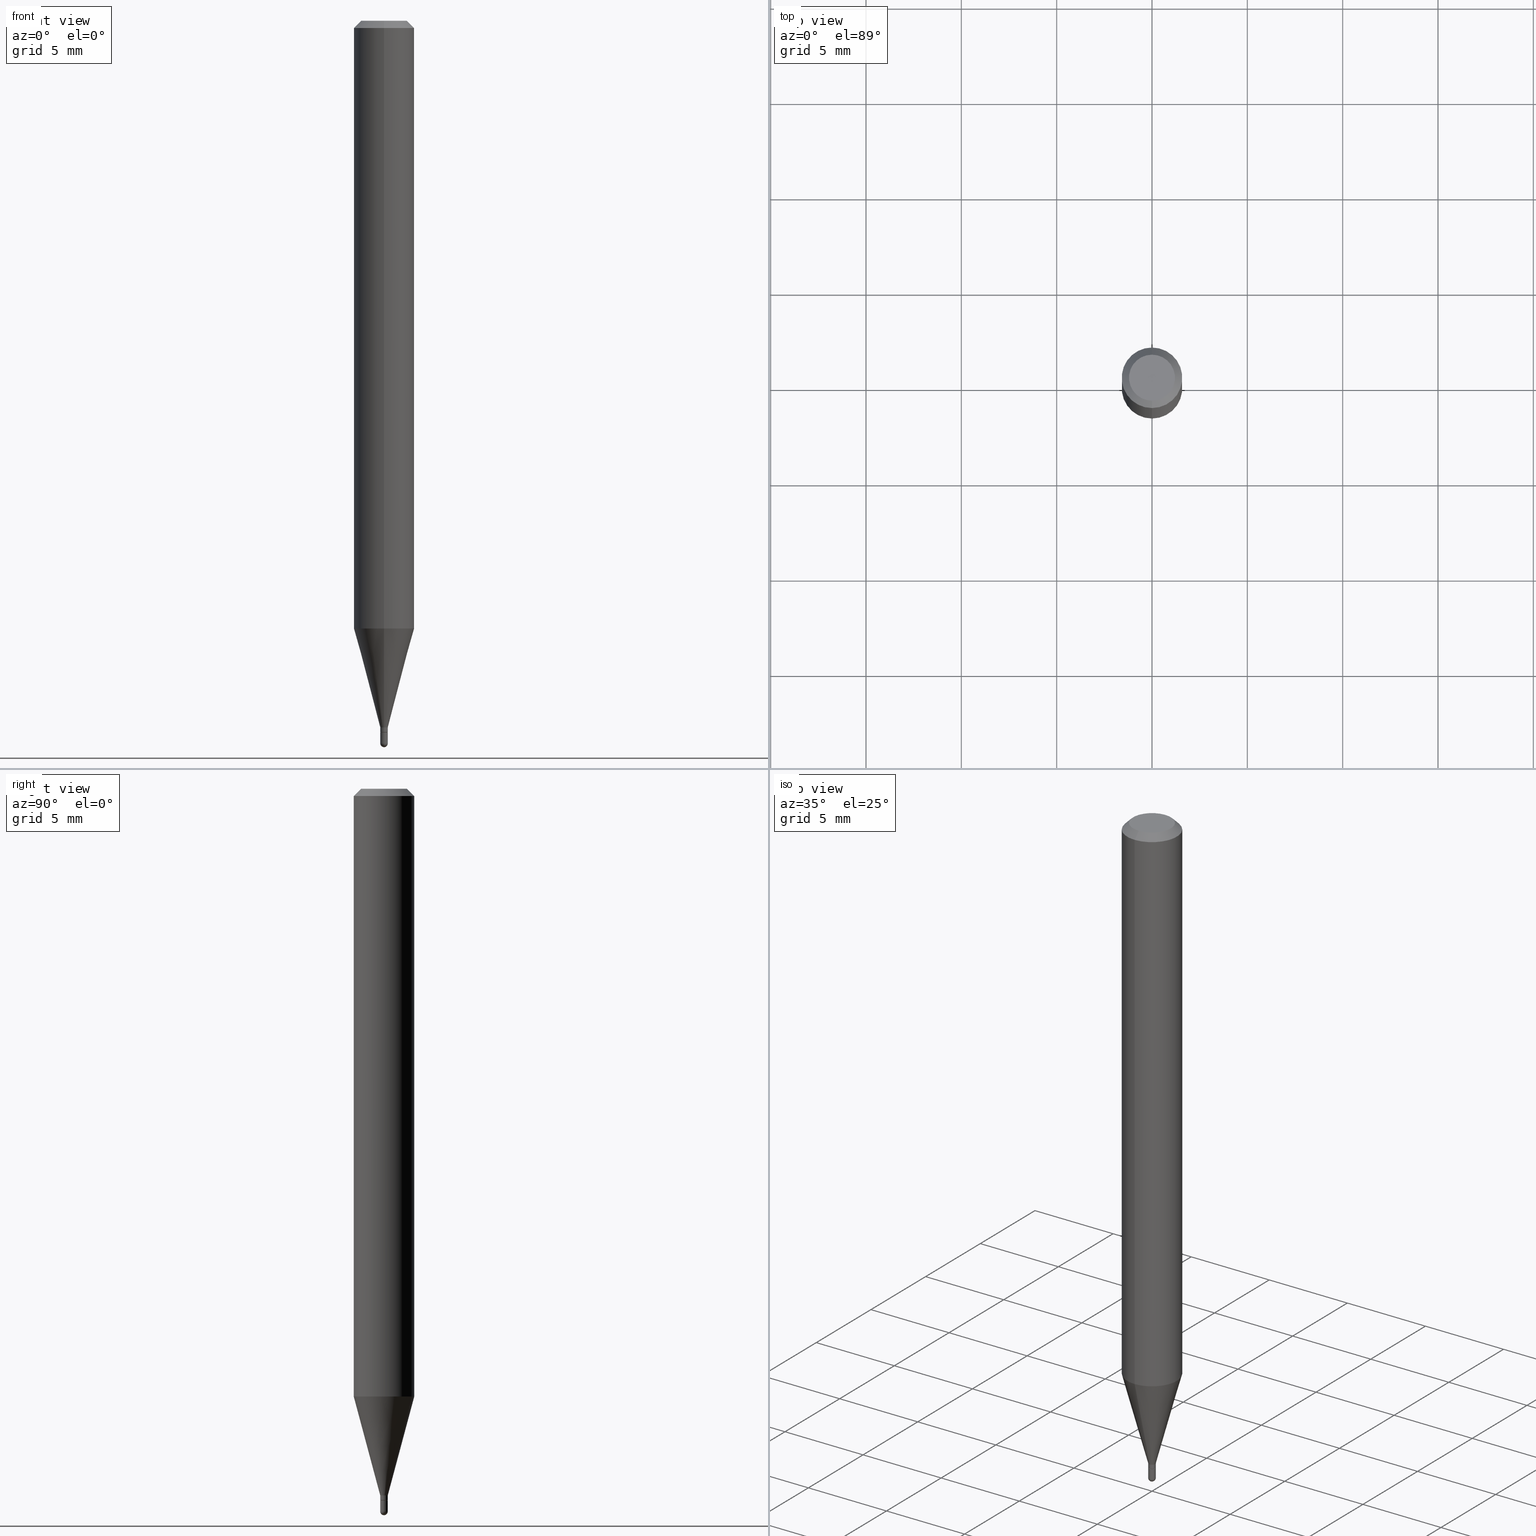
[diagram: canonical four-view strip — front | top / right | iso, engineering-drawing reading convention]
A machine part, canonical four-view strip (front | top / right | iso — engineering-drawing reading convention). The complete STEP part file that produces these views, byte-faithful:
ISO-10303-21;
HEADER;
FILE_DESCRIPTION (( 'STEP AP203' ),
    '1' );
FILE_NAME ('39102.STEP',
    '2024-03-08T12:44:25',
    ( '' ),
    ( '' ),
    'SwSTEP 2.0',
    'SolidWorks 2023',
    '' );
FILE_SCHEMA (( 'CONFIG_CONTROL_DESIGN' ));
ENDSEC;

DATA;
#1 = DIRECTION ( 'NONE',  ( -2.438888398687161749E-29, 3.500904856913780958E-15, 1.000000000000000000 ) ) ;
#2 = ORIENTED_EDGE ( 'NONE', *, *, #356, .T. ) ;
#3 = CARTESIAN_POINT ( 'NONE',  ( 0.007799999999999709076, -5.446710888595084972E-17, 3.803417885120687718E-31 ) ) ;
#4 = EDGE_CURVE ( 'NONE', #43, #236, #222, .T. ) ;
#5 = ORIENTED_EDGE ( 'NONE', *, *, #381, .T. ) ;
#6 = DIRECTION ( 'NONE',  ( -6.982962677686265133E-15, -1.000000000000000000, 3.500904856913780564E-15 ) ) ;
#7 = ORIENTED_EDGE ( 'NONE', *, *, #462, .F. ) ;
#8 = DIRECTION ( 'NONE',  ( -2.445468806185136597E-29, 3.491481338843145583E-15, 1.000000000000000000 ) ) ;
#9 = ORIENTED_EDGE ( 'NONE', *, *, #136, .T. ) ;
#10 = CARTESIAN_POINT ( 'NONE',  ( 5.186961971052139529E-17, 0.007299999999994612881, -1.469000000000000306 ) ) ;
#11 = DIRECTION ( 'NONE',  ( 1.000000000000000000, -6.982962677686265922E-15, 4.883557194083112901E-29 ) ) ;
#12 = CARTESIAN_POINT ( 'NONE',  ( -5.446710888595049843E-17, -0.007799999999999660504, 2.730705788392630131E-17 ) ) ;
#13 = PRODUCT_RELATED_PRODUCT_CATEGORY ( 'detail', '', ( #291 ) ) ;
#14 = DIRECTION ( 'NONE',  ( -2.438888398687161749E-29, 3.500904856913780958E-15, 1.000000000000000000 ) ) ;
#15 = CONICAL_SURFACE ( 'NONE', #461, 0.007299999999999755469, 0.7853981633980042787 ) ;
#16 = DIRECTION ( 'NONE',  ( -4.937700262167293278E-15, -0.7071067811869382602, 0.7071067811861568853 ) ) ;
#17 = DIRECTION ( 'NONE',  ( -2.445468806185136597E-29, 3.491481338843145583E-15, 1.000000000000000000 ) ) ;
#18 = FACE_OUTER_BOUND ( 'NONE', #426, .T. ) ;
#19 = COORDINATED_UNIVERSAL_TIME_OFFSET ( 5, 0, .BEHIND. ) ;
#20 = LINE ( 'NONE', #184, #161 ) ;
#21 =( CONVERSION_BASED_UNIT ( 'INCH', #95 ) LENGTH_UNIT ( ) NAMED_UNIT ( #336 ) );
#22 = CIRCLE ( 'NONE', #194, 0.007799999999999709076 ) ;
#23 = CARTESIAN_POINT ( 'NONE',  ( 5.446710888598677370E-17, 0.007799999999994580366, -1.469000000000000750 ) ) ;
#24 = MANIFOLD_SOLID_BREP ( 'Body-Move/Copy2[1]', #188 ) ;
#25 = DIRECTION ( 'NONE',  ( -1.000000000000000000, 6.982962677686265922E-15, -4.883557194083112340E-29 ) ) ;
#26 = FACE_OUTER_BOUND ( 'NONE', #207, .T. ) ;
#27 = DATE_AND_TIME ( #183, #343 ) ;
#28 = MANIFOLD_SOLID_BREP ( 'Body-Move/Copy2[2]', #335 ) ;
#29 = DATE_AND_TIME ( #69, #229 ) ;
#30 = AXIS2_PLACEMENT_3D ( 'NONE', #482, #247, #399 ) ;
#31 = APPROVAL_PERSON_ORGANIZATION ( #147, #264, #376 ) ;
#32 = EDGE_LOOP ( 'NONE', ( #77, #128 ) ) ;
#33 = ADVANCED_FACE ( 'NONE', ( #497 ), #331, .T. ) ;
#34 = EDGE_CURVE ( 'NONE', #84, #505, #419, .T. ) ;
#35 = LINE ( 'NONE', #104, #484 ) ;
#36 = FACE_OUTER_BOUND ( 'NONE', #82, .T. ) ;
#37 = AXIS2_PLACEMENT_3D ( 'NONE', #99, #488, #139 ) ;
#38 = AXIS2_PLACEMENT_3D ( 'NONE', #76, #338, #355 ) ;
#39 = ORIENTED_EDGE ( 'NONE', *, *, #491, .F. ) ;
#40 = DIRECTION ( 'NONE',  ( 7.105427357601000281E-15, 1.000000000000000000, 0.000000000000000000 ) ) ;
#41 = ORIENTED_EDGE ( 'NONE', *, *, #356, .F. ) ;
#42 = CARTESIAN_POINT ( 'NONE',  ( 3.649128552589461564E-29, -5.209988453821742721E-15, -1.492200000000000193 ) ) ;
#43 = VERTEX_POINT ( 'NONE', #366 ) ;
#44 = DIRECTION ( 'NONE',  ( -2.438888398687161749E-29, 3.500904856913780958E-15, 1.000000000000000000 ) ) ;
#45 = ORIENTED_EDGE ( 'NONE', *, *, #462, .T. ) ;
#46 = CARTESIAN_POINT ( 'NONE',  ( 3.316907271900979054E-16, 0.04750000000000004219, -3.451125341845701985E-16 ) ) ;
#47 = ORIENTED_EDGE ( 'NONE', *, *, #153, .T. ) ;
#48 = CC_DESIGN_PERSON_AND_ORGANIZATION_ASSIGNMENT ( #223, #502, ( #291 ) ) ;
#49 = CARTESIAN_POINT ( 'NONE',  ( 3.658332598030829977E-31, -5.251357285370796693E-17, -0.01500000000000035853 ) ) ;
#50 = DIRECTION ( 'NONE',  ( 1.000000000000000000, -6.982962677686266711E-15, 4.876176775795935232E-29 ) ) ;
#51 = CARTESIAN_POINT ( 'NONE',  ( 8.722418688872659723E-45, -1.252060486586731701E-30, -3.576391069623309378E-16 ) ) ;
#52 = CARTESIAN_POINT ( 'NONE',  ( 0.000000000000000000, 0.000000000000000000, 0.000000000000000000 ) ) ;
#53 = AXIS2_PLACEMENT_3D ( 'NONE', #42, #290, #129 ) ;
#54 = CARTESIAN_POINT ( 'NONE',  ( 0.007799999999999709076, -5.223954379177113172E-15, -1.492200000000000193 ) ) ;
#55 = DIRECTION ( 'NONE',  ( 1.000000000000000000, 0.000000000000000000, 0.000000000000000000 ) ) ;
#56 = LINE ( 'NONE', #254, #80 ) ;
#57 = CARTESIAN_POINT ( 'NONE',  ( 3.434669950589054174E-29, -5.517105378111915335E-15, -1.492200000000000193 ) ) ;
#58 = ORIENTED_EDGE ( 'NONE', *, *, #72, .F. ) ;
#59 = CARTESIAN_POINT ( 'NONE',  ( 3.060455742325940316E-29, -4.393134338761063639E-15, -1.254856820825981156 ) ) ;
#60 = VECTOR ( 'NONE', #415, 39.37007874015748143 ) ;
#61 = VECTOR ( 'NONE', #199, 39.37007874015748143 ) ;
#62 = CC_DESIGN_APPROVAL ( #141, ( #169 ) ) ;
#63 = AXIS2_PLACEMENT_3D ( 'NONE', #146, #262, #50 ) ;
#64 = DIRECTION ( 'NONE',  ( 2.438888398687161749E-29, -3.500904856913780958E-15, -1.000000000000000000 ) ) ;
#65 = EDGE_LOOP ( 'NONE', ( #213, #467, #111, #7 ) ) ;
#66 = PERSON_AND_ORGANIZATION_ROLE ( 'creator' ) ;
#67 = PLANE ( 'NONE',  #387 ) ;
#68 = ORIENTED_EDGE ( 'NONE', *, *, #154, .T. ) ;
#69 = CALENDAR_DATE ( 2024, 8, 3 ) ;
#70 = ORIENTED_EDGE ( 'NONE', *, *, #506, .T. ) ;
#71 = VECTOR ( 'NONE', #16, 39.37007874015748143 ) ;
#72 = EDGE_CURVE ( 'NONE', #509, #439, #211, .T. ) ;
#73 = AXIS2_PLACEMENT_3D ( 'NONE', #245, #191, #187 ) ;
#74 = EDGE_LOOP ( 'NONE', ( #405, #9, #248, #396 ) ) ;
#75 = PERSON_AND_ORGANIZATION ( #472, #477 ) ;
#76 = CARTESIAN_POINT ( 'NONE',  ( 3.558338173684570517E-29, -5.107820186237207836E-15, -1.459000000000000519 ) ) ;
#77 = ORIENTED_EDGE ( 'NONE', *, *, #369, .T. ) ;
#78 = DATE_TIME_ROLE ( 'classification_date' ) ;
#79 = CARTESIAN_POINT ( 'NONE',  ( 0.000000000000000000, 0.000000000000000000, 0.000000000000000000 ) ) ;
#80 = VECTOR ( 'NONE', #483, 39.37007874015748143 ) ;
#81 = AXIS2_PLACEMENT_3D ( 'NONE', #51, #442, #255 ) ;
#82 = EDGE_LOOP ( 'NONE', ( #167, #441 ) ) ;
#83 = DIRECTION ( 'NONE',  ( 5.024295867790855746E-15, 0.7071067811869431452, 0.7071067811861520003 ) ) ;
#84 = VERTEX_POINT ( 'NONE', #295 ) ;
#85 = CYLINDRICAL_SURFACE ( 'NONE', #305, 0.007799999999999660504 ) ;
#86 = VERTEX_POINT ( 'NONE', #490 ) ;
#87 = DIRECTION ( 'NONE',  ( -2.438888398687161749E-29, 3.500904856913780958E-15, 1.000000000000000000 ) ) ;
#88 = ORIENTED_EDGE ( 'NONE', *, *, #136, .F. ) ;
#89 = CIRCLE ( 'NONE', #380, 0.007799999999999709076 ) ;
#90 = DIRECTION ( 'NONE',  ( -6.982962677686265922E-15, -1.000000000000000000, 0.000000000000000000 ) ) ;
#91 = CARTESIAN_POINT ( 'NONE',  ( 3.649128552589461564E-29, -5.209988453821742721E-15, -1.492200000000000193 ) ) ;
#92 = EDGE_CURVE ( 'NONE', #509, #178, #137, .T. ) ;
#93 = CYLINDRICAL_SURFACE ( 'NONE', #228, 0.06250000000000001388 ) ;
#94 = CARTESIAN_POINT ( 'NONE',  ( 3.060455742325940316E-29, -4.393134338761063639E-15, -1.254856820825981156 ) ) ;
#95 = LENGTH_MEASURE_WITH_UNIT ( LENGTH_MEASURE( 0.02539999999999999897 ), #374 );
#96 = CARTESIAN_POINT ( 'NONE',  ( -5.446710888591297207E-17, -0.007800000000004489974, -1.459000000000000519 ) ) ;
#97 = AXIS2_PLACEMENT_3D ( 'NONE', #168, #365, #90 ) ;
#98 = CC_DESIGN_APPROVAL ( #264, ( #347 ) ) ;
#99 = CARTESIAN_POINT ( 'NONE',  ( 3.434669950589054174E-29, -5.517105378111915335E-15, -1.492200000000000193 ) ) ;
#100 = COORDINATED_UNIVERSAL_TIME_OFFSET ( 5, 0, .BEHIND. ) ;
#101 = EDGE_CURVE ( 'NONE', #162, #507, #496, .T. ) ;
#102 = DIRECTION ( 'NONE',  ( -2.438888398687161749E-29, 3.500904856913780958E-15, 1.000000000000000000 ) ) ;
#103 = APPLICATION_PROTOCOL_DEFINITION ( 'international standard', 'config_control_design', 1994, #198 ) ;
#104 = CARTESIAN_POINT ( 'NONE',  ( -4.364351673553917187E-16, -0.06250000000000001388, 2.188065535571113838E-16 ) ) ;
#105 = CC_DESIGN_PERSON_AND_ORGANIZATION_ASSIGNMENT ( #196, #110, ( #169 ) ) ;
#106 = EDGE_LOOP ( 'NONE', ( #512, #233, #41, #398 ) ) ;
#107 = PERSON_AND_ORGANIZATION ( #472, #477 ) ;
#108 = CIRCLE ( 'NONE', #219, 0.007800000000000068164 ) ;
#109 = DIRECTION ( 'NONE',  ( -2.438888398687161749E-29, 3.500904856913780958E-15, 1.000000000000000000 ) ) ;
#110 = PERSON_AND_ORGANIZATION_ROLE ( 'classification_officer' ) ;
#111 = ORIENTED_EDGE ( 'NONE', *, *, #101, .F. ) ;
#112 = APPROVAL_ROLE ( '' ) ;
#113 = AXIS2_PLACEMENT_3D ( 'NONE', #226, #148, #301 ) ;
#114 = ORIENTED_EDGE ( 'NONE', *, *, #101, .T. ) ;
#115 = DIRECTION ( 'NONE',  ( -1.000000000000000000, 6.982962677686265922E-15, -4.876176775795935793E-29 ) ) ;
#116 = ADVANCED_FACE ( 'NONE', ( #257 ), #453, .T. ) ;
#117 = ORIENTED_EDGE ( 'NONE', *, *, #406, .F. ) ;
#118 = FACE_OUTER_BOUND ( 'NONE', #388, .T. ) ;
#119 = VERTEX_POINT ( 'NONE', #54 ) ;
#120 = ADVANCED_FACE ( 'NONE', ( #299 ), #176, .T. ) ;
#121 = CC_DESIGN_PERSON_AND_ORGANIZATION_ASSIGNMENT ( #333, #492, ( #347 ) ) ;
#122 = ADVANCED_FACE ( 'NONE', ( #18 ), #182, .T. ) ;
#123 = DIRECTION ( 'NONE',  ( 2.438888398687161749E-29, -3.500904856913780958E-15, -1.000000000000000000 ) ) ;
#124 = AXIS2_PLACEMENT_3D ( 'NONE', #378, #123, #313 ) ;
#125 = AXIS2_PLACEMENT_3D ( 'NONE', #231, #260, #55 ) ;
#126 = ORIENTED_EDGE ( 'NONE', *, *, #153, .F. ) ;
#127 = DIRECTION ( 'NONE',  ( -6.982962677686265922E-15, -1.000000000000000000, 3.500904856913781353E-15 ) ) ;
#128 = ORIENTED_EDGE ( 'NONE', *, *, #288, .T. ) ;
#129 = DIRECTION ( 'NONE',  ( 1.000000000000000000, -6.982962677686294321E-15, 0.000000000000000000 ) ) ;
#130 = ORIENTED_EDGE ( 'NONE', *, *, #309, .F. ) ;
#131 = DIRECTION ( 'NONE',  ( -2.438888398687161749E-29, 3.500904856913780958E-15, 1.000000000000000000 ) ) ;
#132 = VERTEX_POINT ( 'NONE', #332 ) ;
#133 = CONICAL_SURFACE ( 'NONE', #124, 0.06250000000000001388, 0.7853981633974473908 ) ;
#134 = AXIS2_PLACEMENT_3D ( 'NONE', #94, #256, #412 ) ;
#135 = CARTESIAN_POINT ( 'NONE',  ( 0.007799999999999709076, -5.183453195646533500E-15, -1.469000000000000750 ) ) ;
#136 = EDGE_CURVE ( 'NONE', #202, #505, #56, .T. ) ;
#137 = LINE ( 'NONE', #96, #465 ) ;
#138 = LINE ( 'NONE', #10, #503 ) ;
#139 = DIRECTION ( 'NONE',  ( -6.982962677686265922E-15, -1.000000000000000000, 0.000000000000000000 ) ) ;
#140 = EDGE_CURVE ( 'NONE', #132, #276, #89, .T. ) ;
#141 = APPROVAL ( #345, 'UNSPECIFIED' ) ;
#142 = DIRECTION ( 'NONE',  ( -6.982962677686265922E-15, -1.000000000000000000, 0.000000000000000000 ) ) ;
#143 = CARTESIAN_POINT ( 'NONE',  ( 3.581507613472099215E-29, -5.141078782377889985E-15, -1.468500000000000805 ) ) ;
#144 = AXIS2_PLACEMENT_3D ( 'NONE', #283, #445, #249 ) ;
#145 = DATE_TIME_ROLE ( 'creation_date' ) ;
#146 = CARTESIAN_POINT ( 'NONE',  ( 0.000000000000000000, 0.000000000000000000, 0.000000000000000000 ) ) ;
#147 = PERSON_AND_ORGANIZATION ( #472, #477 ) ;
#148 = DIRECTION ( 'NONE',  ( -2.438888398687161469E-29, 3.500904856913780958E-15, 1.000000000000000000 ) ) ;
#149 = CARTESIAN_POINT ( 'NONE',  ( 4.440892098500935790E-16, 0.06249999999999996531, -0.01500000000000057884 ) ) ;
#150 = CARTESIAN_POINT ( 'NONE',  ( 3.453411092424518502E-29, -5.544816544806560135E-15, -1.500000000000000444 ) ) ;
#151 = DIRECTION ( 'NONE',  ( -6.982962677686265922E-15, -1.000000000000000000, 4.370956789862819572E-15 ) ) ;
#152 = CIRCLE ( 'NONE', #30, 0.007799999999999709076 ) ;
#153 = EDGE_CURVE ( 'NONE', #507, #439, #20, .T. ) ;
#154 = EDGE_CURVE ( 'NONE', #439, #202, #410, .T. ) ;
#155 = EDGE_CURVE ( 'NONE', #178, #202, #446, .T. ) ;
#156 = COORDINATED_UNIVERSAL_TIME_OFFSET ( 5, 0, .BEHIND. ) ;
#157 = ORIENTED_EDGE ( 'NONE', *, *, #500, .F. ) ;
#158 = EDGE_CURVE ( 'NONE', #218, #479, #423, .T. ) ;
#159 = LINE ( 'NONE', #310, #475 ) ;
#160 = AXIS2_PLACEMENT_3D ( 'NONE', #253, #359, #326 ) ;
#161 = VECTOR ( 'NONE', #14, 39.37007874015748143 ) ;
#162 = VERTEX_POINT ( 'NONE', #166 ) ;
#163 = CARTESIAN_POINT ( 'NONE',  ( 3.582727057671441680E-29, -5.142829234806344242E-15, -1.469000000000000306 ) ) ;
#164 = ADVANCED_FACE ( 'NONE', ( #435 ), #422, .T. ) ;
#165 = ORIENTED_EDGE ( 'NONE', *, *, #427, .F. ) ;
#166 = CARTESIAN_POINT ( 'NONE',  ( -5.446710888591679927E-17, -0.007800000000005103198, -1.468500000000000805 ) ) ;
#167 = ORIENTED_EDGE ( 'NONE', *, *, #476, .T. ) ;
#168 = CARTESIAN_POINT ( 'NONE',  ( 3.582727057671441680E-29, -5.142829234806344242E-15, -1.469000000000000306 ) ) ;
#169 = SECURITY_CLASSIFICATION ( '', '', #432 ) ;
#170 = CIRCLE ( 'NONE', #317, 0.06250000000000001388 ) ;
#171 = LOCAL_TIME ( 7, 44, 25.00000000000000000, #100 ) ;
#172 = ORIENTED_EDGE ( 'NONE', *, *, #504, .T. ) ;
#173 = FACE_OUTER_BOUND ( 'NONE', #244, .T. ) ;
#174 = EDGE_LOOP ( 'NONE', ( #204, #400, #45, #157 ) ) ;
#175 = CARTESIAN_POINT ( 'NONE',  ( 5.364597654992228828E-17, 0.007299999999994612881, -1.469000000000000306 ) ) ;
#176 = SPHERICAL_SURFACE ( 'NONE', #327, 0.007800000000000068164 ) ;
#177 = CARTESIAN_POINT ( 'NONE',  ( 3.592393676285967459E-29, -5.128986086760582589E-15, -1.469000000000000750 ) ) ;
#178 = VERTEX_POINT ( 'NONE', #230 ) ;
#179 = DIRECTION ( 'NONE',  ( -6.982962677686265922E-15, -1.000000000000000000, 3.517254291842738179E-15 ) ) ;
#180 = CC_DESIGN_PERSON_AND_ORGANIZATION_ASSIGNMENT ( #107, #66, ( #195 ) ) ;
#181 = APPLICATION_PROTOCOL_DEFINITION ( 'international standard', 'config_control_design', 1994, #404 ) ;
#182 = CYLINDRICAL_SURFACE ( 'NONE', #353, 0.007799999999999709076 ) ;
#183 = CALENDAR_DATE ( 2024, 8, 3 ) ;
#184 = CARTESIAN_POINT ( 'NONE',  ( 5.542233338928538990E-17, 0.007799999999999660504, -2.730705788392630131E-17 ) ) ;
#185 = VECTOR ( 'NONE', #44, 39.37007874015748143 ) ;
#186 = APPROVAL ( #302, 'UNSPECIFIED' ) ;
#187 = DIRECTION ( 'NONE',  ( -6.982962677686266711E-15, -1.000000000000000000, 0.000000000000000000 ) ) ;
#188 = CLOSED_SHELL ( 'NONE', ( #122, #33, #242, #120, #116 ) ) ;
#189 = CYLINDRICAL_SURFACE ( 'NONE', #402, 0.06250000000000001388 ) ;
#190 = CARTESIAN_POINT ( 'NONE',  ( -4.364351673553913736E-16, -0.06250000000000006939, -0.01500000000000013822 ) ) ;
#191 = DIRECTION ( 'NONE',  ( -2.438888398687161749E-29, 3.500904856913780958E-15, 1.000000000000000000 ) ) ;
#192 = ADVANCED_FACE ( 'NONE', ( #383 ), #15, .T. ) ;
#193 = APPROVAL_DATE_TIME ( #29, #141 ) ;
#194 = AXIS2_PLACEMENT_3D ( 'NONE', #177, #8, #370 ) ;
#195 = PRODUCT_DEFINITION_FORMATION_WITH_SPECIFIED_SOURCE ( 'ANY', '', #291, .NOT_KNOWN. ) ;
#196 = PERSON_AND_ORGANIZATION ( #472, #477 ) ;
#197 = EDGE_LOOP ( 'NONE', ( #280, #282 ) ) ;
#198 = APPLICATION_CONTEXT ( 'configuration controlled 3d designs of mechanical parts and assemblies' ) ;
#199 = DIRECTION ( 'NONE',  ( -2.445468806185136877E-29, 3.491481338843145188E-15, 1.000000000000000000 ) ) ;
#200 = CC_DESIGN_DATE_AND_TIME_ASSIGNMENT ( #498, #145, ( #347 ) ) ;
#201 = CARTESIAN_POINT ( 'NONE',  ( 8.722418688872659723E-45, -1.252060486586731701E-30, -3.576391069623309378E-16 ) ) ;
#202 = VERTEX_POINT ( 'NONE', #391 ) ;
#203 = DIRECTION ( 'NONE',  ( 2.438088387897960049E-29, -3.491481338843145188E-15, -1.000000000000000000 ) ) ;
#204 = ORIENTED_EDGE ( 'NONE', *, *, #493, .F. ) ;
#205 = DIRECTION ( 'NONE',  ( -6.982962677686265133E-15, -1.000000000000000000, 3.500904856913780564E-15 ) ) ;
#206 = EDGE_CURVE ( 'NONE', #178, #236, #35, .T. ) ;
#207 = EDGE_LOOP ( 'NONE', ( #271, #238, #346, #311 ) ) ;
#208 = CARTESIAN_POINT ( 'NONE',  ( 3.658332598030829977E-31, -5.251357285370796693E-17, -0.01500000000000035853 ) ) ;
#209 = CIRCLE ( 'NONE', #495, 0.007800000000000068164 ) ;
#210 = EDGE_LOOP ( 'NONE', ( #268, #393, #304, #316 ) ) ;
#211 = CIRCLE ( 'NONE', #401, 0.007799999999999381213 ) ;
#212 = FACE_OUTER_BOUND ( 'NONE', #417, .T. ) ;
#213 = ORIENTED_EDGE ( 'NONE', *, *, #158, .T. ) ;
#214 = ADVANCED_FACE ( 'NONE', ( #267 ), #348, .F. ) ;
#215 = CARTESIAN_POINT ( 'NONE',  ( -5.097562754707220825E-17, -0.007300000000004898057, -1.469000000000000306 ) ) ;
#216 = DIRECTION ( 'NONE',  ( 1.839019923739600315E-15, 0.2588190451025249583, 0.9659258262890670910 ) ) ;
#217 = DIRECTION ( 'NONE',  ( -2.445468806185136597E-29, 3.491481338843145583E-15, 1.000000000000000000 ) ) ;
#218 = VERTEX_POINT ( 'NONE', #392 ) ;
#219 = AXIS2_PLACEMENT_3D ( 'NONE', #275, #243, #40 ) ;
#220 = CONICAL_SURFACE ( 'NONE', #437, 0.007299999999999755469, 0.7853981633980042787 ) ;
#221 = CARTESIAN_POINT ( 'NONE',  ( 5.542233338932299022E-17, 0.007799999999994771185, -1.468500000000000805 ) ) ;
#222 = LINE ( 'NONE', #292, #286 ) ;
#223 = PERSON_AND_ORGANIZATION ( #472, #477 ) ;
#224 = DIRECTION ( 'NONE',  ( -6.982962677686266711E-15, -1.000000000000000000, 0.000000000000000000 ) ) ;
#225 = CARTESIAN_POINT ( 'NONE',  ( -5.446710888591297207E-17, -0.007800000000004489974, -1.459000000000000519 ) ) ;
#226 = CARTESIAN_POINT ( 'NONE',  ( 3.582727057671442241E-29, -5.142829234806345819E-15, -1.469000000000000750 ) ) ;
#227 = ADVANCED_FACE ( 'NONE', ( #457 ), #189, .T. ) ;
#228 = AXIS2_PLACEMENT_3D ( 'NONE', #285, #87, #127 ) ;
#229 = LOCAL_TIME ( 7, 44, 25.00000000000000000, #430 ) ;
#230 = CARTESIAN_POINT ( 'NONE',  ( -4.364351673553611504E-16, -0.06250000000000441314, -1.254856820825980934 ) ) ;
#231 = CARTESIAN_POINT ( 'NONE',  ( 0.000000000000000000, 0.000000000000000000, 0.000000000000000000 ) ) ;
#232 = DIRECTION ( 'NONE',  ( -2.438888398687161749E-29, 3.500904856913780958E-15, 1.000000000000000000 ) ) ;
#233 = ORIENTED_EDGE ( 'NONE', *, *, #309, .T. ) ;
#234 = ADVANCED_FACE ( 'NONE', ( #26 ), #133, .T. ) ;
#235 = CC_DESIGN_DATE_AND_TIME_ASSIGNMENT ( #468, #78, ( #169 ) ) ;
#236 = VERTEX_POINT ( 'NONE', #190 ) ;
#237 = CIRCLE ( 'NONE', #444, 0.06250000000000001388 ) ;
#238 = ORIENTED_EDGE ( 'NONE', *, *, #369, .F. ) ;
#239 = ADVANCED_FACE ( 'NONE', ( #352 ), #287, .T. ) ;
#240 = DIRECTION ( 'NONE',  ( -2.438888398687161749E-29, 3.500904856913780958E-15, 1.000000000000000000 ) ) ;
#241 = ORIENTED_EDGE ( 'NONE', *, *, #506, .F. ) ;
#242 = ADVANCED_FACE ( 'NONE', ( #36 ), #67, .F. ) ;
#243 = DIRECTION ( 'NONE',  ( 1.000000000000000000, -7.105427357601001070E-15, 4.926315508542082329E-29 ) ) ;
#244 = EDGE_LOOP ( 'NONE', ( #114, #47, #58, #320 ) ) ;
#245 = CARTESIAN_POINT ( 'NONE',  ( 3.581507613472099215E-29, -5.141078782377889985E-15, -1.468500000000000805 ) ) ;
#246 = EDGE_LOOP ( 'NONE', ( #88, #70, #364, #463 ) ) ;
#247 = DIRECTION ( 'NONE',  ( -2.445468806185136597E-29, 3.491481338843145583E-15, 1.000000000000000000 ) ) ;
#248 = ORIENTED_EDGE ( 'NONE', *, *, #339, .F. ) ;
#249 = DIRECTION ( 'NONE',  ( -6.982962677686266711E-15, -1.000000000000000000, 0.000000000000000000 ) ) ;
#250 = ADVANCED_FACE ( 'NONE', ( #118 ), #269, .T. ) ;
#251 = VERTEX_POINT ( 'NONE', #150 ) ;
#252 = ADVANCED_FACE ( 'NONE', ( #471 ), #220, .T. ) ;
#253 = CARTESIAN_POINT ( 'NONE',  ( 3.649128552589461564E-29, -5.209988453821742721E-15, -1.492200000000000193 ) ) ;
#254 = CARTESIAN_POINT ( 'NONE',  ( 4.440892098500627148E-16, 0.06250000000000001388, -2.188065535571113838E-16 ) ) ;
#255 = DIRECTION ( 'NONE',  ( -6.982962677686265133E-15, -1.000000000000000000, 3.500904856913780564E-15 ) ) ;
#256 = DIRECTION ( 'NONE',  ( -2.438888398687161749E-29, 3.500904856913780958E-15, 1.000000000000000000 ) ) ;
#257 = FACE_OUTER_BOUND ( 'NONE', #385, .T. ) ;
#258 = AXIS2_PLACEMENT_3D ( 'NONE', #408, #411, #6 ) ;
#259 = AXIS2_PLACEMENT_3D ( 'NONE', #59, #418, #151 ) ;
#260 = DIRECTION ( 'NONE',  ( 0.000000000000000000, 0.000000000000000000, 1.000000000000000000 ) ) ;
#261 = EDGE_CURVE ( 'NONE', #119, #470, #510, .T. ) ;
#262 = DIRECTION ( 'NONE',  ( -2.445468806185136597E-29, 3.491481338843145583E-15, 1.000000000000000000 ) ) ;
#263 =( NAMED_UNIT ( * ) SI_UNIT ( $, .STERADIAN. ) SOLID_ANGLE_UNIT ( ) );
#264 = APPROVAL ( #300, 'UNSPECIFIED' ) ;
#265 = DIRECTION ( 'NONE',  ( -1.807323732225330139E-15, -0.2588190451025181860, 0.9659258262890689783 ) ) ;
#266 = CALENDAR_DATE ( 2024, 8, 3 ) ;
#267 = FACE_OUTER_BOUND ( 'NONE', #197, .T. ) ;
#268 = ORIENTED_EDGE ( 'NONE', *, *, #288, .F. ) ;
#269 = CONICAL_SURFACE ( 'NONE', #38, 0.007799999999999381213, 0.2617993877991502960 ) ;
#270 = DIRECTION ( 'NONE',  ( -2.438888398687161749E-29, 3.500904856913780958E-15, 1.000000000000000000 ) ) ;
#271 = ORIENTED_EDGE ( 'NONE', *, *, #4, .F. ) ;
#272 = EDGE_CURVE ( 'NONE', #132, #358, #159, .T. ) ;
#273 = DIRECTION ( 'NONE',  ( -6.982962677686265922E-15, -1.000000000000000000, 3.500904856913781353E-15 ) ) ;
#274 = EDGE_LOOP ( 'NONE', ( #344, #68, #443, #474 ) ) ;
#275 = CARTESIAN_POINT ( 'NONE',  ( 3.434669950589054174E-29, -5.517105378111915335E-15, -1.492200000000000193 ) ) ;
#276 = VERTEX_POINT ( 'NONE', #433 ) ;
#277 = AXIS2_PLACEMENT_3D ( 'NONE', #421, #64, #278 ) ;
#278 = DIRECTION ( 'NONE',  ( 6.982962677686265922E-15, 1.000000000000000000, -3.517254291842738179E-15 ) ) ;
#279 =( GEOMETRIC_REPRESENTATION_CONTEXT ( 3 ) GLOBAL_UNCERTAINTY_ASSIGNED_CONTEXT ( ( #390 ) ) GLOBAL_UNIT_ASSIGNED_CONTEXT ( ( #21, #382, #263 ) ) REPRESENTATION_CONTEXT ( 'NONE', 'WORKASPACE' ) );
#280 = ORIENTED_EDGE ( 'NONE', *, *, #158, .F. ) ;
#281 = CARTESIAN_POINT ( 'NONE',  ( 3.592393676285967459E-29, -5.128986086760582589E-15, -1.469000000000000750 ) ) ;
#282 = ORIENTED_EDGE ( 'NONE', *, *, #330, .F. ) ;
#283 = CARTESIAN_POINT ( 'NONE',  ( 3.558338173684570517E-29, -5.107820186237207836E-15, -1.459000000000000519 ) ) ;
#284 = EDGE_LOOP ( 'NONE', ( #130, #172, #429, #165 ) ) ;
#285 = CARTESIAN_POINT ( 'NONE',  ( 0.000000000000000000, 0.000000000000000000, 0.000000000000000000 ) ) ;
#286 = VECTOR ( 'NONE', #373, 39.37007874015748143 ) ;
#287 = CONICAL_SURFACE ( 'NONE', #413, 0.007799999999999381213, 0.2617993877991502960 ) ;
#288 = EDGE_CURVE ( 'NONE', #43, #84, #350, .T. ) ;
#289 = CARTESIAN_POINT ( 'NONE',  ( 4.364351673553921131E-16, 0.06249999999999996531, -0.01500000000000057884 ) ) ;
#290 = DIRECTION ( 'NONE',  ( -2.445468806185136597E-29, 3.491481338843145583E-15, 1.000000000000000000 ) ) ;
#291 = PRODUCT ( '39102', '39102', '', ( #416 ) ) ;
#292 = CARTESIAN_POINT ( 'NONE',  ( -4.287811248607204268E-16, -0.06250000000000006939, -0.01500000000000013822 ) ) ;
#293 = DIRECTION ( 'NONE',  ( 2.438888398687161469E-29, -3.500904856913780958E-15, -1.000000000000000000 ) ) ;
#294 = DIRECTION ( 'NONE',  ( -6.982962677686266711E-15, -1.000000000000000000, 0.000000000000000000 ) ) ;
#295 = CARTESIAN_POINT ( 'NONE',  ( 3.840629472727450339E-16, 0.04750000000000004219, -5.239320876657356674E-16 ) ) ;
#296 = AXIS2_PLACEMENT_3D ( 'NONE', #501, #232, #315 ) ;
#297 = CIRCLE ( 'NONE', #73, 0.007799999999999937192 ) ;
#298 = PERSON_AND_ORGANIZATION ( #472, #477 ) ;
#299 = FACE_OUTER_BOUND ( 'NONE', #284, .T. ) ;
#300 = APPROVAL_STATUS ( 'not_yet_approved' ) ;
#301 = DIRECTION ( 'NONE',  ( -6.982962677686265922E-15, -1.000000000000000000, 3.500904856913780958E-15 ) ) ;
#302 = APPROVAL_STATUS ( 'not_yet_approved' ) ;
#303 = CARTESIAN_POINT ( 'NONE',  ( 3.582727057671441680E-29, -5.142829234806344242E-15, -1.469000000000000306 ) ) ;
#304 = ORIENTED_EDGE ( 'NONE', *, *, #339, .T. ) ;
#305 = AXIS2_PLACEMENT_3D ( 'NONE', #448, #397, #205 ) ;
#306 = PERSON_AND_ORGANIZATION_ROLE ( 'design_supplier' ) ;
#307 = ORIENTED_EDGE ( 'NONE', *, *, #261, .F. ) ;
#308 = AXIS2_PLACEMENT_3D ( 'NONE', #46, #293, #480 ) ;
#309 = EDGE_CURVE ( 'NONE', #251, #86, #108, .T. ) ;
#310 = CARTESIAN_POINT ( 'NONE',  ( -0.007799999999999709076, 5.542233338928574736E-17, -3.836769370398683487E-31 ) ) ;
#311 = ORIENTED_EDGE ( 'NONE', *, *, #431, .T. ) ;
#312 = SHAPE_DEFINITION_REPRESENTATION ( #458, #508 ) ;
#313 = DIRECTION ( 'NONE',  ( 6.982962677686265922E-15, 1.000000000000000000, -3.517254291842738179E-15 ) ) ;
#314 = ORIENTED_EDGE ( 'NONE', *, *, #272, .T. ) ;
#315 = DIRECTION ( 'NONE',  ( -6.982962677686265922E-15, -1.000000000000000000, 0.000000000000000000 ) ) ;
#316 = ORIENTED_EDGE ( 'NONE', *, *, #34, .F. ) ;
#317 = AXIS2_PLACEMENT_3D ( 'NONE', #208, #131, #179 ) ;
#318 = DIRECTION ( 'NONE',  ( -2.438888398687161749E-29, 3.500904856913780958E-15, 1.000000000000000000 ) ) ;
#319 = APPROVAL_PERSON_ORGANIZATION ( #75, #141, #112 ) ;
#320 = ORIENTED_EDGE ( 'NONE', *, *, #321, .F. ) ;
#321 = EDGE_CURVE ( 'NONE', #162, #509, #324, .T. ) ;
#322 = LINE ( 'NONE', #215, #71 ) ;
#323 = ORIENTED_EDGE ( 'NONE', *, *, #154, .F. ) ;
#324 = LINE ( 'NONE', #12, #185 ) ;
#325 = CC_DESIGN_PERSON_AND_ORGANIZATION_ASSIGNMENT ( #384, #306, ( #195 ) ) ;
#326 = DIRECTION ( 'NONE',  ( 1.000000000000000000, -6.982962677686294321E-15, 0.000000000000000000 ) ) ;
#327 = AXIS2_PLACEMENT_3D ( 'NONE', #486, #11, #375 ) ;
#328 = CARTESIAN_POINT ( 'NONE',  ( 3.558338173684570517E-29, -5.107820186237207836E-15, -1.459000000000000519 ) ) ;
#329 = DIRECTION ( 'NONE',  ( 1.000000000000000000, -6.982962677686294321E-15, 0.000000000000000000 ) ) ;
#330 = EDGE_CURVE ( 'NONE', #479, #218, #361, .T. ) ;
#331 = SPHERICAL_SURFACE ( 'NONE', #37, 0.007800000000000068164 ) ;
#332 = CARTESIAN_POINT ( 'NONE',  ( -0.007799999999999709076, -5.114064936901876606E-15, -1.492200000000000193 ) ) ;
#333 = PERSON_AND_ORGANIZATION ( #472, #477 ) ;
#334 = DIRECTION ( 'NONE',  ( 1.000000000000000000, -6.982962677686266711E-15, 4.876176775795935232E-29 ) ) ;
#335 = CLOSED_SHELL ( 'NONE', ( #409, #192, #164, #227, #239, #250, #473, #234, #489, #214, #252, #357 ) ) ;
#336 = DIMENSIONAL_EXPONENTS ( 1.000000000000000000, 0.000000000000000000, 0.000000000000000000, 0.000000000000000000, 0.000000000000000000, 0.000000000000000000, 0.000000000000000000 ) ;
#337 = APPROVAL_DATE_TIME ( #27, #264 ) ;
#338 = DIRECTION ( 'NONE',  ( -2.438888398687161749E-29, 3.500904856913780958E-15, 1.000000000000000000 ) ) ;
#339 = EDGE_CURVE ( 'NONE', #236, #505, #170, .T. ) ;
#340 = DIRECTION ( 'NONE',  ( -6.982962677686266711E-15, -1.000000000000000000, 0.000000000000000000 ) ) ;
#341 = ORIENTED_EDGE ( 'NONE', *, *, #272, .F. ) ;
#342 = ORIENTED_EDGE ( 'NONE', *, *, #92, .T. ) ;
#343 = LOCAL_TIME ( 7, 44, 25.00000000000000000, #19 ) ;
#344 = ORIENTED_EDGE ( 'NONE', *, *, #72, .T. ) ;
#345 = APPROVAL_STATUS ( 'not_yet_approved' ) ;
#346 = ORIENTED_EDGE ( 'NONE', *, *, #34, .T. ) ;
#347 = PRODUCT_DEFINITION ( 'UNKNOWN', '', #195, #407 ) ;
#348 = PLANE ( 'NONE',  #113 ) ;
#349 = AXIS2_PLACEMENT_3D ( 'NONE', #143, #368, #224 ) ;
#350 = CIRCLE ( 'NONE', #379, 0.04750000000000004219 ) ;
#351 = CC_DESIGN_SECURITY_CLASSIFICATION ( #169, ( #195 ) ) ;
#352 = FACE_OUTER_BOUND ( 'NONE', #274, .T. ) ;
#353 = AXIS2_PLACEMENT_3D ( 'NONE', #52, #17, #334 ) ;
#354 = ORIENTED_EDGE ( 'NONE', *, *, #261, .T. ) ;
#355 = DIRECTION ( 'NONE',  ( -6.982962677686266711E-15, -1.000000000000000000, 0.000000000000000000 ) ) ;
#356 = EDGE_CURVE ( 'NONE', #119, #86, #394, .T. ) ;
#357 = ADVANCED_FACE ( 'NONE', ( #212 ), #85, .T. ) ;
#358 = VERTEX_POINT ( 'NONE', #362 ) ;
#359 = DIRECTION ( 'NONE',  ( -2.445468806185136597E-29, 3.491481338843145583E-15, 1.000000000000000000 ) ) ;
#360 = ORIENTED_EDGE ( 'NONE', *, *, #476, .F. ) ;
#361 = CIRCLE ( 'NONE', #97, 0.007299999999999755469 ) ;
#362 = CARTESIAN_POINT ( 'NONE',  ( -0.007799999999999709076, -5.114064936901876606E-15, -1.469000000000000750 ) ) ;
#363 = CIRCLE ( 'NONE', #259, 0.06250000000000002776 ) ;
#364 = ORIENTED_EDGE ( 'NONE', *, *, #206, .T. ) ;
#365 = DIRECTION ( 'NONE',  ( -2.438888398687161749E-29, 3.500904856913780958E-15, 1.000000000000000000 ) ) ;
#366 = CARTESIAN_POINT ( 'NONE',  ( -3.773273898774342241E-16, -0.04750000000000004219, -1.913461262589262082E-16 ) ) ;
#367 = FACE_OUTER_BOUND ( 'NONE', #246, .T. ) ;
#368 = DIRECTION ( 'NONE',  ( -2.438888398687161749E-29, 3.500904856913780958E-15, 1.000000000000000000 ) ) ;
#369 = EDGE_CURVE ( 'NONE', #84, #43, #464, .T. ) ;
#370 = DIRECTION ( 'NONE',  ( 1.000000000000000000, -6.982962677686294321E-15, 0.000000000000000000 ) ) ;
#371 = VECTOR ( 'NONE', #216, 39.37007874015748143 ) ;
#372 = CIRCLE ( 'NONE', #53, 0.007799999999999709076 ) ;
#373 = DIRECTION ( 'NONE',  ( -4.851104656540959542E-15, -0.7071067811865493491, -0.7071067811865456854 ) ) ;
#374 =( LENGTH_UNIT ( ) NAMED_UNIT ( * ) SI_UNIT ( $, .METRE. ) );
#375 = DIRECTION ( 'NONE',  ( -6.982962677686265922E-15, -1.000000000000000000, 0.000000000000000000 ) ) ;
#376 = APPROVAL_ROLE ( '' ) ;
#377 = DIRECTION ( 'NONE',  ( -2.445468806185136597E-29, 3.491481338843145583E-15, 1.000000000000000000 ) ) ;
#378 = CARTESIAN_POINT ( 'NONE',  ( 3.658332598030829977E-31, -5.251357285370796693E-17, -0.01500000000000035853 ) ) ;
#379 = AXIS2_PLACEMENT_3D ( 'NONE', #201, #1, #469 ) ;
#380 = AXIS2_PLACEMENT_3D ( 'NONE', #91, #377, #449 ) ;
#381 = EDGE_CURVE ( 'NONE', #276, #119, #372, .T. ) ;
#382 =( NAMED_UNIT ( * ) PLANE_ANGLE_UNIT ( ) SI_UNIT ( $, .RADIAN. ) );
#383 = FACE_OUTER_BOUND ( 'NONE', #65, .T. ) ;
#384 = PERSON_AND_ORGANIZATION ( #472, #477 ) ;
#385 = EDGE_LOOP ( 'NONE', ( #341, #481, #5, #354, #117 ) ) ;
#386 = CALENDAR_DATE ( 2024, 8, 3 ) ;
#387 = AXIS2_PLACEMENT_3D ( 'NONE', #23, #203, #115 ) ;
#388 = EDGE_LOOP ( 'NONE', ( #323, #450, #342, #241 ) ) ;
#389 = APPROVAL_PERSON_ORGANIZATION ( #298, #186, #454 ) ;
#390 = UNCERTAINTY_MEASURE_WITH_UNIT (LENGTH_MEASURE( 1.000000000000000082E-05 ), #21, 'distance_accuracy_value', 'NONE');
#391 = CARTESIAN_POINT ( 'NONE',  ( 4.440892098500931845E-16, 0.06249999999999561462, -1.254856820825981378 ) ) ;
#392 = CARTESIAN_POINT ( 'NONE',  ( -5.097562754707220825E-17, -0.007300000000004898057, -1.469000000000000306 ) ) ;
#393 = ORIENTED_EDGE ( 'NONE', *, *, #4, .T. ) ;
#394 = CIRCLE ( 'NONE', #160, 0.007799999999999709076 ) ;
#395 = CARTESIAN_POINT ( 'NONE',  ( 3.558338173684570517E-29, -5.107820186237207836E-15, -1.459000000000000519 ) ) ;
#396 = ORIENTED_EDGE ( 'NONE', *, *, #206, .F. ) ;
#397 = DIRECTION ( 'NONE',  ( -2.438888398687161749E-29, 3.500904856913780958E-15, 1.000000000000000000 ) ) ;
#398 = ORIENTED_EDGE ( 'NONE', *, *, #381, .F. ) ;
#399 = DIRECTION ( 'NONE',  ( 1.000000000000000000, -6.982962677686294321E-15, 0.000000000000000000 ) ) ;
#400 = ORIENTED_EDGE ( 'NONE', *, *, #330, .T. ) ;
#401 = AXIS2_PLACEMENT_3D ( 'NONE', #328, #102, #294 ) ;
#402 = AXIS2_PLACEMENT_3D ( 'NONE', #79, #270, #273 ) ;
#403 = CYLINDRICAL_SURFACE ( 'NONE', #258, 0.007799999999999660504 ) ;
#404 = APPLICATION_CONTEXT ( 'configuration controlled 3d designs of mechanical parts and assemblies' ) ;
#405 = ORIENTED_EDGE ( 'NONE', *, *, #155, .T. ) ;
#406 = EDGE_CURVE ( 'NONE', #358, #470, #22, .T. ) ;
#407 = DESIGN_CONTEXT ( 'detailed design', #198, 'design' ) ;
#408 = CARTESIAN_POINT ( 'NONE',  ( 0.000000000000000000, 0.000000000000000000, 0.000000000000000000 ) ) ;
#409 = ADVANCED_FACE ( 'NONE', ( #173 ), #403, .T. ) ;
#410 = LINE ( 'NONE', #447, #371 ) ;
#411 = DIRECTION ( 'NONE',  ( -2.438888398687161749E-29, 3.500904856913780958E-15, 1.000000000000000000 ) ) ;
#412 = DIRECTION ( 'NONE',  ( -6.982962677686265922E-15, -1.000000000000000000, 4.370956789862819572E-15 ) ) ;
#413 = AXIS2_PLACEMENT_3D ( 'NONE', #395, #460, #340 ) ;
#414 = LOCAL_TIME ( 7, 44, 25.00000000000000000, #456 ) ;
#415 = DIRECTION ( 'NONE',  ( 4.937700262164543309E-15, 0.7071067811865444641, -0.7071067811865505703 ) ) ;
#416 = MECHANICAL_CONTEXT ( 'NONE', #404, 'mechanical' ) ;
#417 = EDGE_LOOP ( 'NONE', ( #126, #434, #436, #39 ) ) ;
#418 = DIRECTION ( 'NONE',  ( -2.438888398687161749E-29, 3.500904856913780958E-15, 1.000000000000000000 ) ) ;
#419 = LINE ( 'NONE', #289, #60 ) ;
#420 = APPROVAL_DATE_TIME ( #459, #186 ) ;
#421 = CARTESIAN_POINT ( 'NONE',  ( 3.658332598030829977E-31, -5.251357285370796693E-17, -0.01500000000000035853 ) ) ;
#422 = CONICAL_SURFACE ( 'NONE', #277, 0.06250000000000001388, 0.7853981633974473908 ) ;
#423 = CIRCLE ( 'NONE', #296, 0.007299999999999755469 ) ;
#424 = CALENDAR_DATE ( 2024, 8, 3 ) ;
#425 = DIRECTION ( 'NONE',  ( -6.982962677686265922E-15, -1.000000000000000000, 0.000000000000000000 ) ) ;
#426 = EDGE_LOOP ( 'NONE', ( #455, #314, #360, #307, #2 ) ) ;
#427 = EDGE_CURVE ( 'NONE', #86, #132, #152, .T. ) ;
#428 = CIRCLE ( 'NONE', #494, 0.007799999999999709076 ) ;
#429 = ORIENTED_EDGE ( 'NONE', *, *, #140, .F. ) ;
#430 = COORDINATED_UNIVERSAL_TIME_OFFSET ( 5, 0, .BEHIND. ) ;
#431 = EDGE_CURVE ( 'NONE', #505, #236, #237, .T. ) ;
#432 = SECURITY_CLASSIFICATION_LEVEL ( 'unclassified' ) ;
#433 = CARTESIAN_POINT ( 'NONE',  ( -5.446710888591666985E-17, -0.007800000000005251517, -1.492200000000000193 ) ) ;
#434 = ORIENTED_EDGE ( 'NONE', *, *, #500, .T. ) ;
#435 = FACE_OUTER_BOUND ( 'NONE', #210, .T. ) ;
#436 = ORIENTED_EDGE ( 'NONE', *, *, #321, .T. ) ;
#437 = AXIS2_PLACEMENT_3D ( 'NONE', #303, #109, #425 ) ;
#438 = DIRECTION ( 'NONE',  ( -2.438888398687161749E-29, 3.500904856913780958E-15, 1.000000000000000000 ) ) ;
#439 = VERTEX_POINT ( 'NONE', #478 ) ;
#440 = FACE_OUTER_BOUND ( 'NONE', #32, .T. ) ;
#441 = ORIENTED_EDGE ( 'NONE', *, *, #406, .T. ) ;
#442 = DIRECTION ( 'NONE',  ( -2.438888398687161749E-29, 3.500904856913780958E-15, 1.000000000000000000 ) ) ;
#443 = ORIENTED_EDGE ( 'NONE', *, *, #155, .F. ) ;
#444 = AXIS2_PLACEMENT_3D ( 'NONE', #49, #318, #485 ) ;
#445 = DIRECTION ( 'NONE',  ( -2.438888398687161749E-29, 3.500904856913780958E-15, 1.000000000000000000 ) ) ;
#446 = CIRCLE ( 'NONE', #134, 0.06250000000000002776 ) ;
#447 = CARTESIAN_POINT ( 'NONE',  ( 5.542233338931899661E-17, 0.007799999999994273320, -1.459000000000000519 ) ) ;
#448 = CARTESIAN_POINT ( 'NONE',  ( 0.000000000000000000, 0.000000000000000000, 0.000000000000000000 ) ) ;
#449 = DIRECTION ( 'NONE',  ( 1.000000000000000000, -6.982962677686294321E-15, 0.000000000000000000 ) ) ;
#450 = ORIENTED_EDGE ( 'NONE', *, *, #491, .T. ) ;
#451 = LOCAL_TIME ( 7, 44, 25.00000000000000000, #156 ) ;
#452 = CC_DESIGN_APPROVAL ( #186, ( #195 ) ) ;
#453 = CYLINDRICAL_SURFACE ( 'NONE', #63, 0.007799999999999709076 ) ;
#454 = APPROVAL_ROLE ( '' ) ;
#455 = ORIENTED_EDGE ( 'NONE', *, *, #427, .T. ) ;
#456 = COORDINATED_UNIVERSAL_TIME_OFFSET ( 5, 0, .BEHIND. ) ;
#457 = FACE_OUTER_BOUND ( 'NONE', #74, .T. ) ;
#458 = PRODUCT_DEFINITION_SHAPE ( 'NONE', 'NONE',  #347 ) ;
#459 = DATE_AND_TIME ( #266, #171 ) ;
#460 = DIRECTION ( 'NONE',  ( -2.438888398687161749E-29, 3.500904856913780958E-15, 1.000000000000000000 ) ) ;
#461 = AXIS2_PLACEMENT_3D ( 'NONE', #163, #240, #499 ) ;
#462 = EDGE_CURVE ( 'NONE', #218, #162, #322, .T. ) ;
#463 = ORIENTED_EDGE ( 'NONE', *, *, #431, .F. ) ;
#464 = CIRCLE ( 'NONE', #81, 0.04750000000000004219 ) ;
#465 = VECTOR ( 'NONE', #265, 39.37007874015748143 ) ;
#466 = DIRECTION ( 'NONE',  ( -2.445468806185136877E-29, 3.491481338843145188E-15, 1.000000000000000000 ) ) ;
#467 = ORIENTED_EDGE ( 'NONE', *, *, #493, .T. ) ;
#468 = DATE_AND_TIME ( #386, #451 ) ;
#469 = DIRECTION ( 'NONE',  ( -6.982962677686265133E-15, -1.000000000000000000, 3.500904856913780564E-15 ) ) ;
#470 = VERTEX_POINT ( 'NONE', #135 ) ;
#471 = FACE_OUTER_BOUND ( 'NONE', #174, .T. ) ;
#472 = PERSON ( 'UNSPECIFIED', 'UNSPECIFIED', 'UNSPECIFIED', ('UNSPECIFIED'), ('UNSPECIFIED'), ('UNSPECIFIED') ) ;
#473 = ADVANCED_FACE ( 'NONE', ( #367 ), #93, .T. ) ;
#474 = ORIENTED_EDGE ( 'NONE', *, *, #92, .F. ) ;
#475 = VECTOR ( 'NONE', #466, 39.37007874015748143 ) ;
#476 = EDGE_CURVE ( 'NONE', #470, #358, #428, .T. ) ;
#477 = ORGANIZATION ( 'UNSPECIFIED', 'UNSPECIFIED', '' ) ;
#478 = CARTESIAN_POINT ( 'NONE',  ( 2.497557716197062816E-16, 0.007799999999994272452, -1.459000000000000519 ) ) ;
#479 = VERTEX_POINT ( 'NONE', #175 ) ;
#480 = DIRECTION ( 'NONE',  ( 6.982962677686265922E-15, 1.000000000000000000, -3.500904856913780958E-15 ) ) ;
#481 = ORIENTED_EDGE ( 'NONE', *, *, #140, .T. ) ;
#482 = CARTESIAN_POINT ( 'NONE',  ( 3.649128552589461564E-29, -5.209988453821742721E-15, -1.492200000000000193 ) ) ;
#483 = DIRECTION ( 'NONE',  ( -2.438888398687161749E-29, 3.500904856913780958E-15, 1.000000000000000000 ) ) ;
#484 = VECTOR ( 'NONE', #438, 39.37007874015748143 ) ;
#485 = DIRECTION ( 'NONE',  ( -6.982962677686265922E-15, -1.000000000000000000, 3.517254291842738179E-15 ) ) ;
#486 = CARTESIAN_POINT ( 'NONE',  ( 3.434669950589054174E-29, -5.517105378111915335E-15, -1.492200000000000193 ) ) ;
#487 = PLANE ( 'NONE',  #308 ) ;
#488 = DIRECTION ( 'NONE',  ( 1.000000000000000000, -6.982962677686265922E-15, 4.883557194083112901E-29 ) ) ;
#489 = ADVANCED_FACE ( 'NONE', ( #440 ), #487, .F. ) ;
#490 = CARTESIAN_POINT ( 'NONE',  ( 5.542233338932245404E-17, 0.007799999999994524855, -1.492200000000000193 ) ) ;
#491 = EDGE_CURVE ( 'NONE', #439, #509, #511, .T. ) ;
#492 = PERSON_AND_ORGANIZATION_ROLE ( 'creator' ) ;
#493 = EDGE_CURVE ( 'NONE', #479, #507, #138, .T. ) ;
#494 = AXIS2_PLACEMENT_3D ( 'NONE', #281, #217, #329 ) ;
#495 = AXIS2_PLACEMENT_3D ( 'NONE', #57, #25, #142 ) ;
#496 = CIRCLE ( 'NONE', #349, 0.007799999999999937192 ) ;
#497 = FACE_OUTER_BOUND ( 'NONE', #106, .T. ) ;
#498 = DATE_AND_TIME ( #424, #414 ) ;
#499 = DIRECTION ( 'NONE',  ( -6.982962677686265922E-15, -1.000000000000000000, 0.000000000000000000 ) ) ;
#500 = EDGE_CURVE ( 'NONE', #507, #162, #297, .T. ) ;
#501 = CARTESIAN_POINT ( 'NONE',  ( 3.582727057671441680E-29, -5.142829234806344242E-15, -1.469000000000000306 ) ) ;
#502 = PERSON_AND_ORGANIZATION_ROLE ( 'design_owner' ) ;
#503 = VECTOR ( 'NONE', #83, 39.37007874015748143 ) ;
#504 = EDGE_CURVE ( 'NONE', #251, #276, #209, .T. ) ;
#505 = VERTEX_POINT ( 'NONE', #149 ) ;
#506 = EDGE_CURVE ( 'NONE', #202, #178, #363, .T. ) ;
#507 = VERTEX_POINT ( 'NONE', #221 ) ;
#508 = ADVANCED_BREP_SHAPE_REPRESENTATION ( '39102', ( #24, #28, #125 ), #279 ) ;
#509 = VERTEX_POINT ( 'NONE', #225 ) ;
#510 = LINE ( 'NONE', #3, #61 ) ;
#511 = CIRCLE ( 'NONE', #144, 0.007799999999999381213 ) ;
#512 = ORIENTED_EDGE ( 'NONE', *, *, #504, .F. ) ;
ENDSEC;
END-ISO-10303-21;
